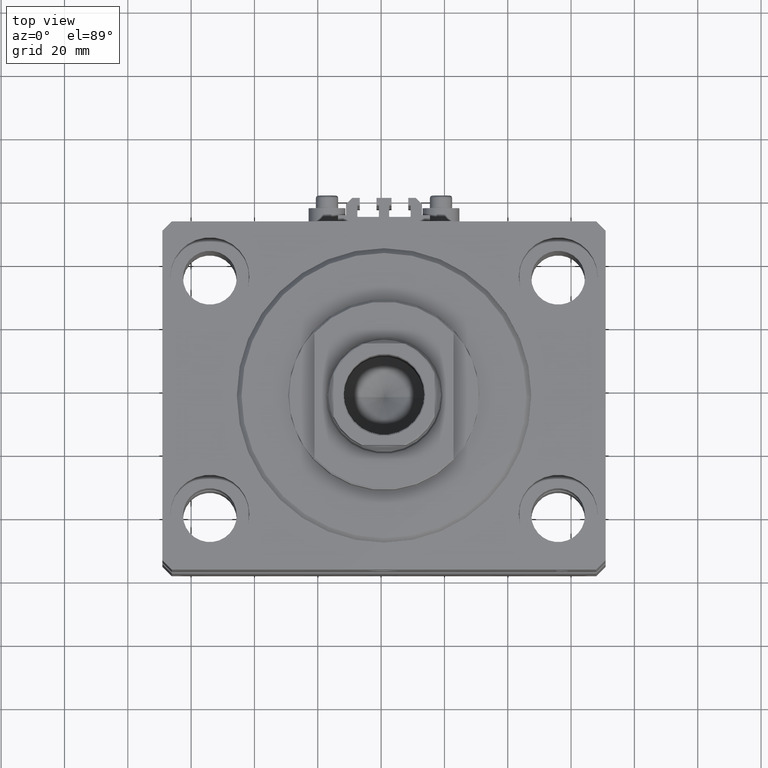
[diagram: clean part render]
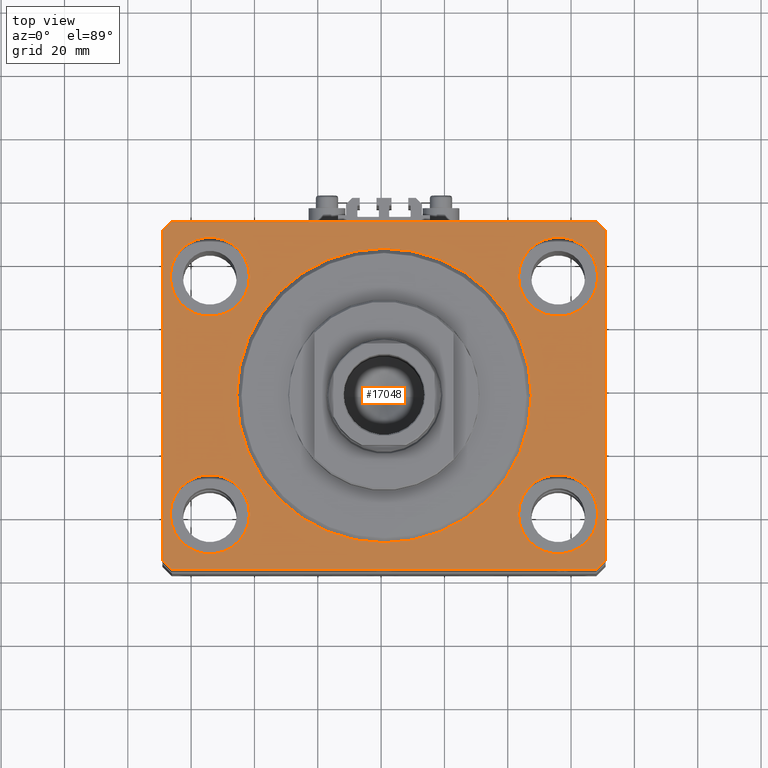
[diagram: same view with one face highlighted and labeled with its STEP entity id]
A machine part, top view. The second image highlights one B-rep face of the part: STEP entity #17048.
In plain terms, the highlighted planar face has unit normal (0, 0, 1).
Its self-contained STEP definition (entity closure, byte-faithful):
#621 = CARTESIAN_POINT ( 'NONE',  ( 70.00000000000056843, 51.99999999999996447, 0.000000000000000000 ) ) ;
#770 = FACE_BOUND ( 'NONE', #39265, .T. ) ;
#1079 = CARTESIAN_POINT ( 'NONE',  ( 67.00000000000001421, -54.99999999999997868, 0.000000000000000000 ) ) ;
#1716 = CIRCLE ( 'NONE', #28470, 46.50000000000000000 ) ;
#1737 = CARTESIAN_POINT ( 'NONE',  ( -67.00000000000001421, -55.00000000000000000, 0.000000000000000000 ) ) ;
#1781 = AXIS2_PLACEMENT_3D ( 'NONE', #13259, #28308, #40117 ) ;
#1786 = DIRECTION ( 'NONE',  ( -1.000000000000000000, -1.553483709829969339E-16, 0.000000000000000000 ) ) ;
#2193 = EDGE_CURVE ( 'NONE', #18793, #19846, #24232, .T. ) ;
#2234 = ORIENTED_EDGE ( 'NONE', *, *, #13371, .F. ) ;
#2453 = ORIENTED_EDGE ( 'NONE', *, *, #15174, .F. ) ;
#2752 = CARTESIAN_POINT ( 'NONE',  ( 67.50000000000000000, 37.50000000000002132, 0.000000000000000000 ) ) ;
#3126 = DIRECTION ( 'NONE',  ( 1.000000000000000000, 0.000000000000000000, 0.000000000000000000 ) ) ;
#3178 = DIRECTION ( 'NONE',  ( -0.7071067811865344721, 0.7071067811865606734, 0.000000000000000000 ) ) ;
#3271 = AXIS2_PLACEMENT_3D ( 'NONE', #31639, #31398, #42480 ) ;
#3702 = ORIENTED_EDGE ( 'NONE', *, *, #9146, .T. ) ;
#3720 = EDGE_CURVE ( 'NONE', #48480, #12751, #35662, .T. ) ;
#3832 = DIRECTION ( 'NONE',  ( -2.668805347656626678E-16, -1.000000000000000000, 0.000000000000000000 ) ) ;
#4329 = DIRECTION ( 'NONE',  ( 1.000000000000000000, 0.000000000000000000, 0.000000000000000000 ) ) ;
#4403 = CARTESIAN_POINT ( 'NONE',  ( 0.000000000000000000, 0.000000000000000000, 0.000000000000000000 ) ) ;
#4614 = CARTESIAN_POINT ( 'NONE',  ( 46.50000000000000000, 0.000000000000000000, 0.000000000000000000 ) ) ;
#4890 = EDGE_CURVE ( 'NONE', #11506, #48480, #37118, .T. ) ;
#5048 = VERTEX_POINT ( 'NONE', #40009 ) ;
#5114 = DIRECTION ( 'NONE',  ( 1.000000000000000000, 0.000000000000000000, 0.000000000000000000 ) ) ;
#5238 = VERTEX_POINT ( 'NONE', #45449 ) ;
#5488 = CARTESIAN_POINT ( 'NONE',  ( 67.00000000000061107, 55.00000000000002132, 0.000000000000000000 ) ) ;
#5718 = VECTOR ( 'NONE', #37965, 1000.000000000000000 ) ;
#5944 = FACE_OUTER_BOUND ( 'NONE', #40313, .T. ) ;
#6182 = CARTESIAN_POINT ( 'NONE',  ( 0.000000000000000000, 0.000000000000000000, 0.000000000000000000 ) ) ;
#6327 = ORIENTED_EDGE ( 'NONE', *, *, #31796, .F. ) ;
#6467 = DIRECTION ( 'NONE',  ( 0.000000000000000000, 0.000000000000000000, 1.000000000000000000 ) ) ;
#6801 = ORIENTED_EDGE ( 'NONE', *, *, #46690, .T. ) ;
#6906 = VECTOR ( 'NONE', #3832, 1000.000000000000000 ) ;
#7297 = AXIS2_PLACEMENT_3D ( 'NONE', #6182, #43921, #13574 ) ;
#7299 = CARTESIAN_POINT ( 'NONE',  ( -55.00000000000000711, -37.50000000000000711, 0.000000000000000000 ) ) ;
#8874 = VECTOR ( 'NONE', #17696, 1000.000000000000114 ) ;
#8998 = ORIENTED_EDGE ( 'NONE', *, *, #2193, .F. ) ;
#9146 = EDGE_CURVE ( 'NONE', #5048, #11506, #14934, .T. ) ;
#9168 = VERTEX_POINT ( 'NONE', #38591 ) ;
#9182 = CARTESIAN_POINT ( 'NONE',  ( 67.50000000000000000, -37.50000000000000711, 0.000000000000000000 ) ) ;
#9392 = CARTESIAN_POINT ( 'NONE',  ( 70.00000000000000000, -51.99999999999999289, 0.000000000000000000 ) ) ;
#9563 = ORIENTED_EDGE ( 'NONE', *, *, #18964, .F. ) ;
#9614 = CIRCLE ( 'NONE', #11210, 12.49999999999999645 ) ;
#10984 = DIRECTION ( 'NONE',  ( 0.000000000000000000, 0.000000000000000000, 1.000000000000000000 ) ) ;
#11157 = CIRCLE ( 'NONE', #38717, 12.49999999999999645 ) ;
#11210 = AXIS2_PLACEMENT_3D ( 'NONE', #40241, #6467, #19943 ) ;
#11506 = VERTEX_POINT ( 'NONE', #29690 ) ;
#11737 = CARTESIAN_POINT ( 'NONE',  ( -67.00000000000000000, 55.00000000000000000, 0.000000000000000000 ) ) ;
#11762 = CARTESIAN_POINT ( 'NONE',  ( 0.000000000000000000, 0.000000000000000000, 0.000000000000000000 ) ) ;
#12010 = CARTESIAN_POINT ( 'NONE',  ( -70.00000000000001421, -51.99999999999999289, 0.000000000000000000 ) ) ;
#12154 = VECTOR ( 'NONE', #1786, 1000.000000000000000 ) ;
#12751 = VERTEX_POINT ( 'NONE', #1737 ) ;
#13259 = CARTESIAN_POINT ( 'NONE',  ( 55.00000000000000711, 37.50000000000002132, 0.000000000000000000 ) ) ;
#13371 = EDGE_CURVE ( 'NONE', #37651, #29337, #48082, .T. ) ;
#13410 = EDGE_LOOP ( 'NONE', ( #48749, #8998 ) ) ;
#13574 = DIRECTION ( 'NONE',  ( 1.000000000000000000, 0.000000000000000000, -0.000000000000000000 ) ) ;
#13647 = VECTOR ( 'NONE', #3178, 1000.000000000000000 ) ;
#14152 = VERTEX_POINT ( 'NONE', #23441 ) ;
#14415 = EDGE_LOOP ( 'NONE', ( #2453, #43168 ) ) ;
#14494 = CIRCLE ( 'NONE', #28685, 12.49999999999999645 ) ;
#14626 = CARTESIAN_POINT ( 'NONE',  ( 42.50000000000000711, -37.50000000000000711, 0.000000000000000000 ) ) ;
#14665 = LINE ( 'NONE', #22565, #27028 ) ;
#14934 = LINE ( 'NONE', #11737, #46407 ) ;
#15174 = EDGE_CURVE ( 'NONE', #38217, #5238, #1716, .T. ) ;
#15477 = CARTESIAN_POINT ( 'NONE',  ( -67.50000000000000000, 37.49999999999999289, 0.000000000000000000 ) ) ;
#16488 = AXIS2_PLACEMENT_3D ( 'NONE', #23082, #38113, #4329 ) ;
#17048 = ADVANCED_FACE ( 'NONE', ( #26695, #45680, #23478, #770, #27178, #5944 ), #47371, .T. ) ;
#17374 = CARTESIAN_POINT ( 'NONE',  ( 42.50000000000000711, 37.50000000000002132, 0.000000000000000000 ) ) ;
#17512 = EDGE_CURVE ( 'NONE', #25900, #30237, #22138, .T. ) ;
#17696 = DIRECTION ( 'NONE',  ( 0.7071067811865474617, 0.7071067811865474617, 0.000000000000000000 ) ) ;
#17901 = AXIS2_PLACEMENT_3D ( 'NONE', #28258, #20619, #43063 ) ;
#17990 = DIRECTION ( 'NONE',  ( 0.000000000000000000, 0.000000000000000000, 1.000000000000000000 ) ) ;
#18216 = CIRCLE ( 'NONE', #3271, 12.49999999999999645 ) ;
#18381 = EDGE_CURVE ( 'NONE', #14152, #29643, #11157, .T. ) ;
#18711 = ORIENTED_EDGE ( 'NONE', *, *, #18381, .F. ) ;
#18793 = VERTEX_POINT ( 'NONE', #14626 ) ;
#18964 = EDGE_CURVE ( 'NONE', #29337, #37651, #18216, .T. ) ;
#19117 = CARTESIAN_POINT ( 'NONE',  ( -69.99999999999998579, 51.99999999999999289, 0.000000000000000000 ) ) ;
#19669 = DIRECTION ( 'NONE',  ( 1.000000000000000000, 0.000000000000000000, 0.000000000000000000 ) ) ;
#19694 = CARTESIAN_POINT ( 'NONE',  ( 67.00000000000061107, 55.00000000000002132, 0.000000000000000000 ) ) ;
#19846 = VERTEX_POINT ( 'NONE', #9182 ) ;
#19943 = DIRECTION ( 'NONE',  ( 1.000000000000000000, 0.000000000000000000, 0.000000000000000000 ) ) ;
#19975 = VERTEX_POINT ( 'NONE', #2752 ) ;
#20619 = DIRECTION ( 'NONE',  ( 0.000000000000000000, 0.000000000000000000, 1.000000000000000000 ) ) ;
#20834 = ORIENTED_EDGE ( 'NONE', *, *, #43200, .T. ) ;
#21354 = EDGE_CURVE ( 'NONE', #37447, #19975, #33309, .T. ) ;
#21652 = CARTESIAN_POINT ( 'NONE',  ( 67.00000000000001421, -54.99999999999997868, 0.000000000000000000 ) ) ;
#22138 = LINE ( 'NONE', #21652, #8874 ) ;
#22199 = CARTESIAN_POINT ( 'NONE',  ( 55.00000000000000711, 37.50000000000002132, 0.000000000000000000 ) ) ;
#22323 = CARTESIAN_POINT ( 'NONE',  ( -42.50000000000000711, -37.50000000000000711, 0.000000000000000000 ) ) ;
#22565 = CARTESIAN_POINT ( 'NONE',  ( -67.00000000000001421, -55.00000000000000000, 0.000000000000000000 ) ) ;
#22589 = DIRECTION ( 'NONE',  ( -0.7071067811865451302, -0.7071067811865500152, 0.000000000000000000 ) ) ;
#22926 = LINE ( 'NONE', #33532, #5718 ) ;
#23082 = CARTESIAN_POINT ( 'NONE',  ( -55.00000000000000711, 37.49999999999999289, 0.000000000000000000 ) ) ;
#23441 = CARTESIAN_POINT ( 'NONE',  ( -42.50000000000000711, 37.49999999999999289, 0.000000000000000000 ) ) ;
#23478 = FACE_BOUND ( 'NONE', #47941, .T. ) ;
#23625 = DIRECTION ( 'NONE',  ( 0.000000000000000000, 0.000000000000000000, 1.000000000000000000 ) ) ;
#23864 = CARTESIAN_POINT ( 'NONE',  ( -55.00000000000000711, 37.49999999999999289, 0.000000000000000000 ) ) ;
#23992 = ORIENTED_EDGE ( 'NONE', *, *, #46145, .T. ) ;
#24232 = CIRCLE ( 'NONE', #17901, 12.49999999999999645 ) ;
#24347 = EDGE_CURVE ( 'NONE', #19975, #37447, #14494, .T. ) ;
#25862 = LINE ( 'NONE', #621, #13647 ) ;
#25900 = VERTEX_POINT ( 'NONE', #1079 ) ;
#26158 = ORIENTED_EDGE ( 'NONE', *, *, #43868, .T. ) ;
#26528 = ORIENTED_EDGE ( 'NONE', *, *, #17512, .T. ) ;
#26695 = FACE_BOUND ( 'NONE', #28477, .T. ) ;
#26801 = DIRECTION ( 'NONE',  ( 0.000000000000000000, 0.000000000000000000, 1.000000000000000000 ) ) ;
#27028 = VECTOR ( 'NONE', #32928, 1000.000000000000000 ) ;
#27178 = FACE_BOUND ( 'NONE', #14415, .T. ) ;
#28258 = CARTESIAN_POINT ( 'NONE',  ( 55.00000000000000711, -37.50000000000000711, 0.000000000000000000 ) ) ;
#28308 = DIRECTION ( 'NONE',  ( 0.000000000000000000, 0.000000000000000000, 1.000000000000000000 ) ) ;
#28470 = AXIS2_PLACEMENT_3D ( 'NONE', #4403, #23625, #19669 ) ;
#28477 = EDGE_LOOP ( 'NONE', ( #2234, #9563 ) ) ;
#28685 = AXIS2_PLACEMENT_3D ( 'NONE', #22199, #17990, #37238 ) ;
#29337 = VERTEX_POINT ( 'NONE', #47853 ) ;
#29643 = VERTEX_POINT ( 'NONE', #15477 ) ;
#29690 = CARTESIAN_POINT ( 'NONE',  ( -69.99999999999998579, 51.99999999999999289, 0.000000000000000000 ) ) ;
#30237 = VERTEX_POINT ( 'NONE', #9392 ) ;
#31398 = DIRECTION ( 'NONE',  ( 0.000000000000000000, 0.000000000000000000, 1.000000000000000000 ) ) ;
#31639 = CARTESIAN_POINT ( 'NONE',  ( -55.00000000000000711, -37.50000000000000711, 0.000000000000000000 ) ) ;
#31796 = EDGE_CURVE ( 'NONE', #29643, #14152, #48779, .T. ) ;
#32928 = DIRECTION ( 'NONE',  ( 1.000000000000000000, 1.553483709829976241E-16, 0.000000000000000000 ) ) ;
#33309 = CIRCLE ( 'NONE', #1781, 12.49999999999999645 ) ;
#33532 = CARTESIAN_POINT ( 'NONE',  ( 70.00000000000000000, -51.99999999999999289, 0.000000000000000000 ) ) ;
#33949 = AXIS2_PLACEMENT_3D ( 'NONE', #7299, #10984, #34422 ) ;
#34422 = DIRECTION ( 'NONE',  ( 1.000000000000000000, 0.000000000000000000, 0.000000000000000000 ) ) ;
#35178 = DIRECTION ( 'NONE',  ( 0.7071067811865466846, -0.7071067811865483499, 0.000000000000000000 ) ) ;
#35403 = EDGE_CURVE ( 'NONE', #5238, #38217, #37865, .T. ) ;
#35662 = LINE ( 'NONE', #12010, #43982 ) ;
#36808 = VERTEX_POINT ( 'NONE', #19694 ) ;
#37118 = LINE ( 'NONE', #19117, #6906 ) ;
#37147 = ORIENTED_EDGE ( 'NONE', *, *, #21354, .F. ) ;
#37238 = DIRECTION ( 'NONE',  ( 1.000000000000000000, 0.000000000000000000, 0.000000000000000000 ) ) ;
#37447 = VERTEX_POINT ( 'NONE', #17374 ) ;
#37651 = VERTEX_POINT ( 'NONE', #22323 ) ;
#37865 = CIRCLE ( 'NONE', #48102, 46.50000000000000000 ) ;
#37965 = DIRECTION ( 'NONE',  ( 5.337610695313255329E-15, 1.000000000000000000, 0.000000000000000000 ) ) ;
#38113 = DIRECTION ( 'NONE',  ( 0.000000000000000000, 0.000000000000000000, 1.000000000000000000 ) ) ;
#38217 = VERTEX_POINT ( 'NONE', #4614 ) ;
#38454 = ORIENTED_EDGE ( 'NONE', *, *, #3720, .T. ) ;
#38591 = CARTESIAN_POINT ( 'NONE',  ( 70.00000000000056843, 51.99999999999996447, 0.000000000000000000 ) ) ;
#38717 = AXIS2_PLACEMENT_3D ( 'NONE', #23864, #38897, #5114 ) ;
#38897 = DIRECTION ( 'NONE',  ( 0.000000000000000000, 0.000000000000000000, 1.000000000000000000 ) ) ;
#39265 = EDGE_LOOP ( 'NONE', ( #18711, #6327 ) ) ;
#39424 = ORIENTED_EDGE ( 'NONE', *, *, #24347, .F. ) ;
#40009 = CARTESIAN_POINT ( 'NONE',  ( -67.00000000000000000, 55.00000000000000000, 0.000000000000000000 ) ) ;
#40117 = DIRECTION ( 'NONE',  ( 1.000000000000000000, 0.000000000000000000, 0.000000000000000000 ) ) ;
#40241 = CARTESIAN_POINT ( 'NONE',  ( 55.00000000000000711, -37.50000000000000711, 0.000000000000000000 ) ) ;
#40313 = EDGE_LOOP ( 'NONE', ( #6801, #3702, #42559, #38454, #26158, #26528, #20834, #23992 ) ) ;
#41535 = CARTESIAN_POINT ( 'NONE',  ( -70.00000000000001421, -51.99999999999999289, 0.000000000000000000 ) ) ;
#42480 = DIRECTION ( 'NONE',  ( 1.000000000000000000, 0.000000000000000000, 0.000000000000000000 ) ) ;
#42559 = ORIENTED_EDGE ( 'NONE', *, *, #4890, .T. ) ;
#43063 = DIRECTION ( 'NONE',  ( 1.000000000000000000, 0.000000000000000000, 0.000000000000000000 ) ) ;
#43168 = ORIENTED_EDGE ( 'NONE', *, *, #35403, .F. ) ;
#43200 = EDGE_CURVE ( 'NONE', #30237, #9168, #22926, .T. ) ;
#43224 = EDGE_CURVE ( 'NONE', #19846, #18793, #9614, .T. ) ;
#43868 = EDGE_CURVE ( 'NONE', #12751, #25900, #14665, .T. ) ;
#43921 = DIRECTION ( 'NONE',  ( 0.000000000000000000, 0.000000000000000000, 1.000000000000000000 ) ) ;
#43982 = VECTOR ( 'NONE', #35178, 1000.000000000000000 ) ;
#45449 = CARTESIAN_POINT ( 'NONE',  ( -46.50000000000000000, 5.694607616035192278E-15, 0.000000000000000000 ) ) ;
#45680 = FACE_BOUND ( 'NONE', #13410, .T. ) ;
#46145 = EDGE_CURVE ( 'NONE', #9168, #36808, #25862, .T. ) ;
#46407 = VECTOR ( 'NONE', #22589, 1000.000000000000114 ) ;
#46685 = LINE ( 'NONE', #5488, #12154 ) ;
#46690 = EDGE_CURVE ( 'NONE', #36808, #5048, #46685, .T. ) ;
#47371 = PLANE ( 'NONE',  #7297 ) ;
#47853 = CARTESIAN_POINT ( 'NONE',  ( -67.50000000000000000, -37.50000000000000711, 0.000000000000000000 ) ) ;
#47941 = EDGE_LOOP ( 'NONE', ( #39424, #37147 ) ) ;
#48082 = CIRCLE ( 'NONE', #33949, 12.49999999999999645 ) ;
#48102 = AXIS2_PLACEMENT_3D ( 'NONE', #11762, #26801, #3126 ) ;
#48480 = VERTEX_POINT ( 'NONE', #41535 ) ;
#48749 = ORIENTED_EDGE ( 'NONE', *, *, #43224, .F. ) ;
#48779 = CIRCLE ( 'NONE', #16488, 12.49999999999999645 ) ;